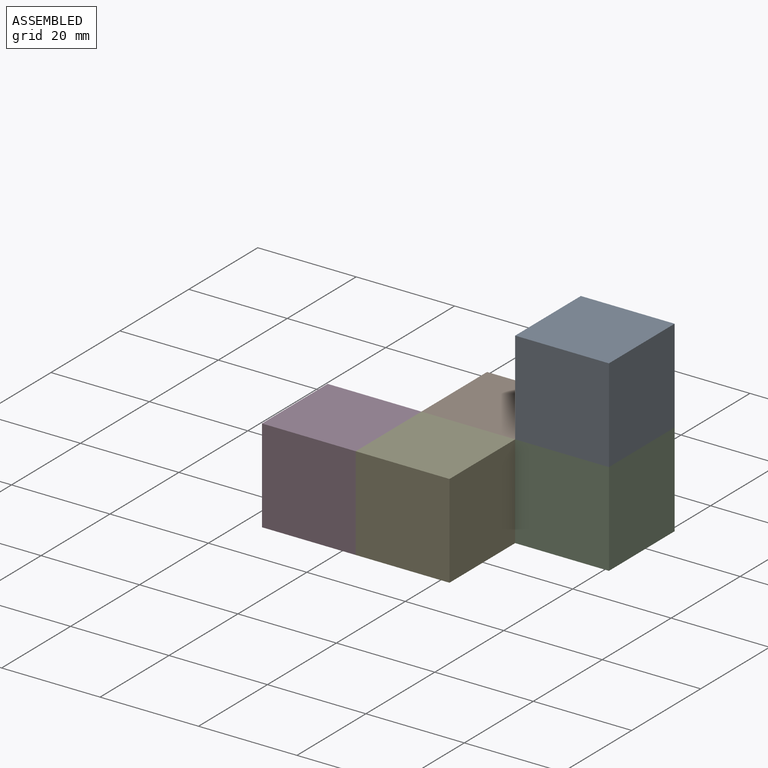
[diagram: assembled view]
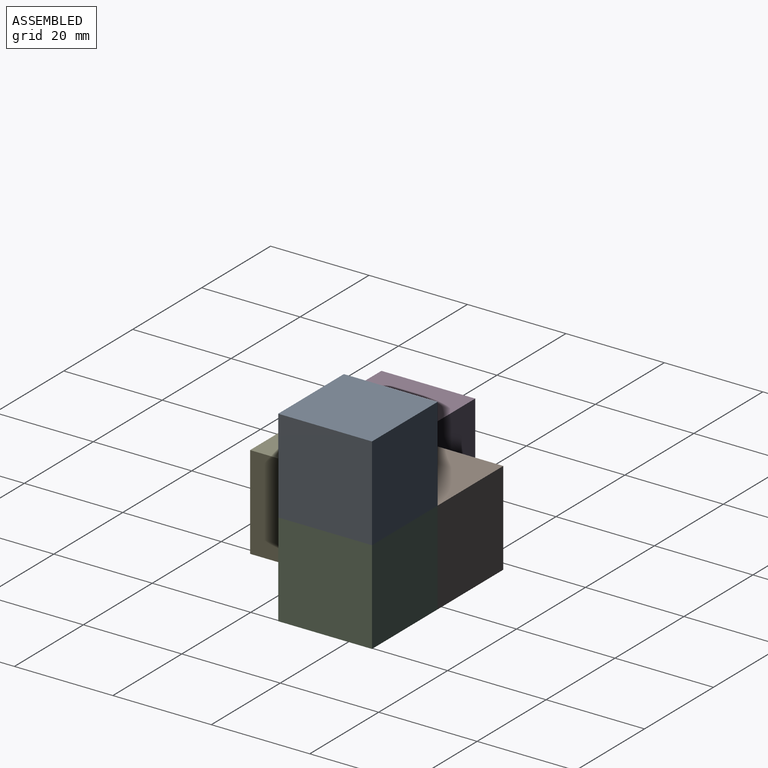
[diagram: assembled view, second angle]
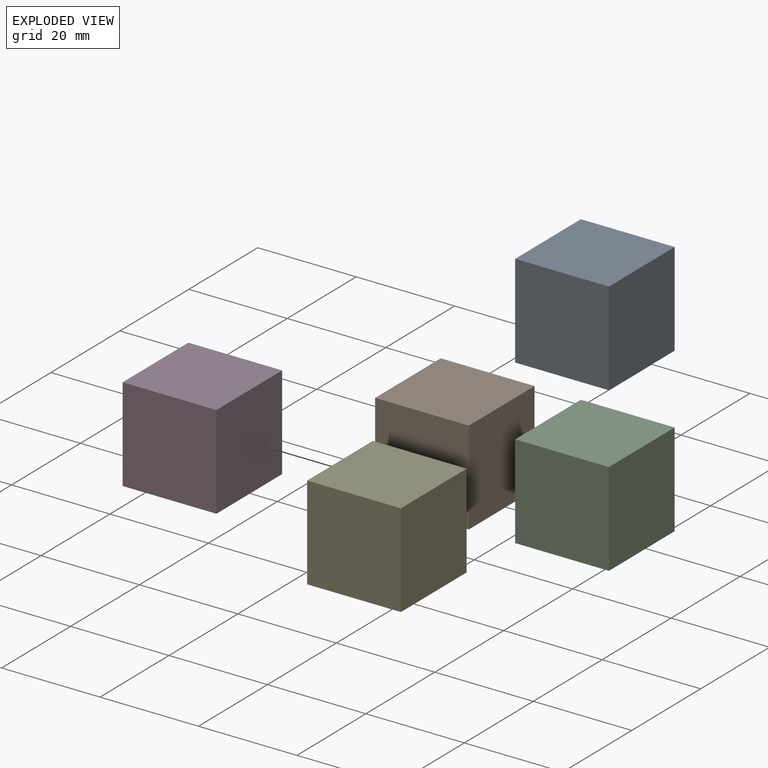
[diagram: exploded view]
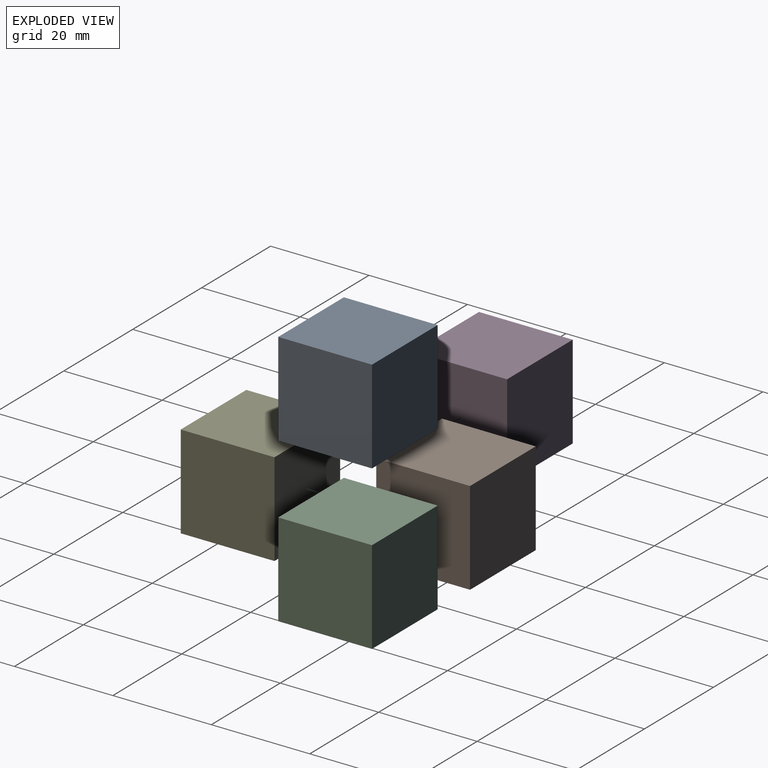
[diagram: exploded view, second angle]
ASSEMBLY  parts=5 mates=4
PART A: 6 faces, bbox 19.1x19.1x19.1 mm
  f0: plane 19.05x19.05mm, normal (-1,0,0), area 362.9mm2, adj f1,f3,f4,f5
  f1: plane 19.05x19.05mm, normal (0,0,-1), area 362.9mm2, adj f0,f2,f4,f5
  f2: plane 19.05x19.05mm, normal (1,0,0), area 362.9mm2, adj f1,f3,f4,f5
  f3: plane 19.05x19.05mm, normal (0,0,1), area 362.9mm2, adj f0,f2,f4,f5
  f4: plane 19.05x19.05mm, normal (0,-1,0), area 362.9mm2, adj f0,f1,f2,f3
  f5: plane 19.05x19.05mm, normal (0,1,0), area 362.9mm2, adj f0,f1,f2,f3
PART B: same geometry as A
PART C: same geometry as A
PART D: same geometry as A
PART E: same geometry as A
PLACE A t=(12.79,-3.26,19.58)mm
PLACE B t=(-6.26,-3.26,0.53)mm fixed
PLACE C t=(12.79,-3.26,0.53)mm
PLACE D t=(-25.31,-22.31,0.53)mm
PLACE E t=(-6.26,-22.31,0.53)mm
MATE fastened E.f0 <-> D.f2  axis (-1,0,0) through (-15.78,-22.31,0.53)mm
MATE fastened B.f4 <-> E.f5  axis (0,-1,0) through (-6.26,-12.78,0.53)mm
MATE fastened C.f3 <-> A.f1  axis (0,0,1) through (12.79,-3.26,10.05)mm
MATE fastened B.f2 <-> C.f0  axis (1,0,0) through (3.27,-3.26,0.53)mm
